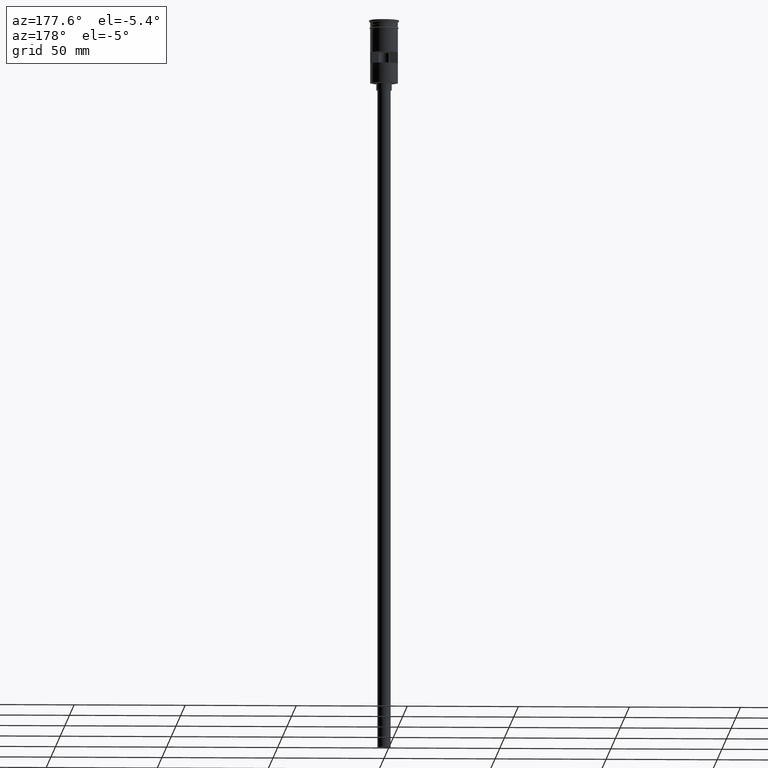
[diagram: clean part render]
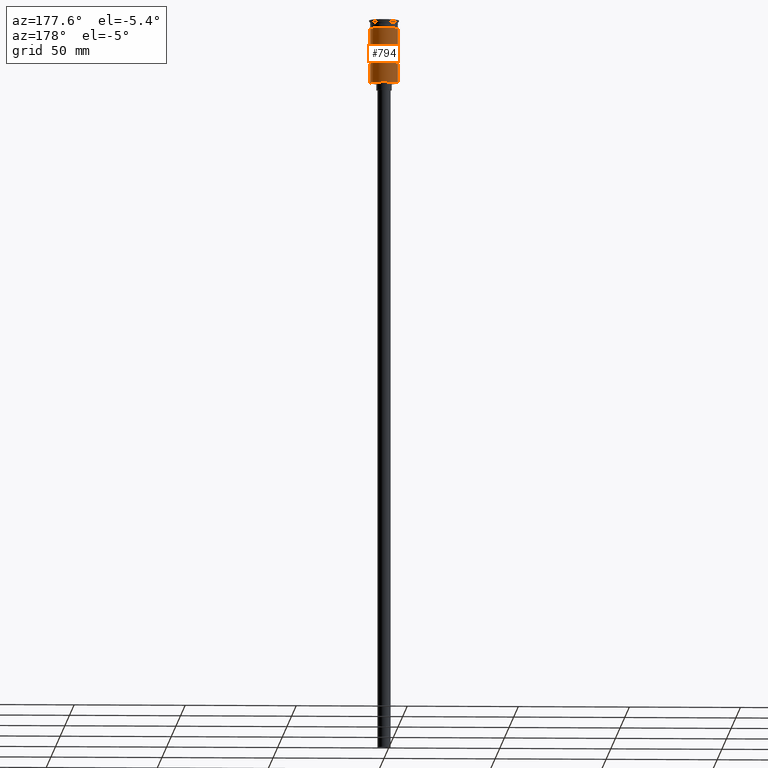
[diagram: same view with one face highlighted and labeled with its STEP entity id]
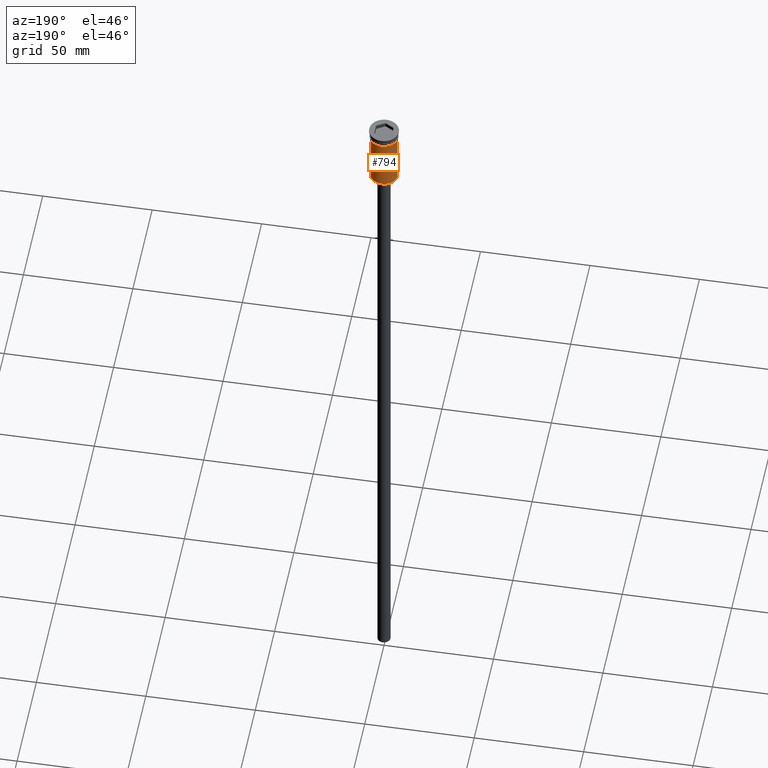
[diagram: same view with one face highlighted and labeled with its STEP entity id]
A machine part, auxiliary view. The second image highlights one B-rep face of the part: STEP entity #794.
A second angle (auxiliary view) of the same face is appended — the face is thin or edge-on in the first view.
In plain terms, the highlighted cylindrical surface (edge-blend (fillet) strip) has radius 6.25 mm, axis along (-0, -0, 1).
Its self-contained STEP definition (entity closure, byte-faithful):
#2 = CARTESIAN_POINT ( 'NONE',  ( 6.249999999999997335, 7.654042494670953662E-16, -23.80000000000003624 ) ) ;
#23 = ORIENTED_EDGE ( 'NONE', *, *, #407, .F. ) ;
#24 = EDGE_CURVE ( 'NONE', #122, #1211, #163, .T. ) ;
#122 = VERTEX_POINT ( 'NONE', #788 ) ;
#154 = DIRECTION ( 'NONE',  ( -0.000000000000000000, -0.000000000000000000, 1.000000000000000000 ) ) ;
#163 = CIRCLE ( 'NONE', #1358, 6.249999999999997335 ) ;
#183 = EDGE_CURVE ( 'NONE', #798, #122, #331, .T. ) ;
#199 = CARTESIAN_POINT ( 'NONE',  ( 0.000000000000000000, 0.000000000000000000, -14.49999999999999822 ) ) ;
#202 = DIRECTION ( 'NONE',  ( -0.000000000000000000, -0.000000000000000000, 1.000000000000000000 ) ) ;
#205 = DIRECTION ( 'NONE',  ( -0.000000000000000000, -0.000000000000000000, 1.000000000000000000 ) ) ;
#214 = EDGE_CURVE ( 'NONE', #1603, #798, #1306, .T. ) ;
#218 = VECTOR ( 'NONE', #1350, 1000.000000000000000 ) ;
#223 = AXIS2_PLACEMENT_3D ( 'NONE', #611, #360, #732 ) ;
#249 = LINE ( 'NONE', #844, #218 ) ;
#252 = LINE ( 'NONE', #1303, #972 ) ;
#259 = ORIENTED_EDGE ( 'NONE', *, *, #1120, .T. ) ;
#265 = VERTEX_POINT ( 'NONE', #1353 ) ;
#274 = FACE_OUTER_BOUND ( 'NONE', #1319, .T. ) ;
#281 = FACE_BOUND ( 'NONE', #1518, .T. ) ;
#311 = DIRECTION ( 'NONE',  ( -0.000000000000000000, -3.070307037127093647E-16, -1.000000000000000000 ) ) ;
#331 = LINE ( 'NONE', #1583, #569 ) ;
#350 = ORIENTED_EDGE ( 'NONE', *, *, #214, .F. ) ;
#360 = DIRECTION ( 'NONE',  ( 0.000000000000000000, 0.000000000000000000, 1.000000000000000000 ) ) ;
#364 = LINE ( 'NONE', #864, #520 ) ;
#407 = EDGE_CURVE ( 'NONE', #805, #612, #364, .T. ) ;
#416 = EDGE_CURVE ( 'NONE', #625, #265, #252, .T. ) ;
#418 = CARTESIAN_POINT ( 'NONE',  ( -6.249999999999995559, 0.000000000000000000, -28.29999999999999716 ) ) ;
#420 = ORIENTED_EDGE ( 'NONE', *, *, #594, .F. ) ;
#430 = CARTESIAN_POINT ( 'NONE',  ( -6.221133337262590324, 0.5999999999999999778, -14.49999999999999822 ) ) ;
#448 = LINE ( 'NONE', #592, #1489 ) ;
#455 = VECTOR ( 'NONE', #154, 1000.000000000000000 ) ;
#473 = CARTESIAN_POINT ( 'NONE',  ( 6.249999999999995559, 7.654042494670950704E-16, -28.29999999999999716 ) ) ;
#518 = DIRECTION ( 'NONE',  ( -0.000000000000000000, -0.000000000000000000, 1.000000000000000000 ) ) ;
#520 = VECTOR ( 'NONE', #1364, 1000.000000000000000 ) ;
#540 = VERTEX_POINT ( 'NONE', #418 ) ;
#569 = VECTOR ( 'NONE', #1195, 1000.000000000000000 ) ;
#576 = ORIENTED_EDGE ( 'NONE', *, *, #183, .F. ) ;
#592 = CARTESIAN_POINT ( 'NONE',  ( -6.249999999999995559, 0.000000000000000000, -28.50000000000000000 ) ) ;
#594 = EDGE_CURVE ( 'NONE', #1211, #1603, #249, .T. ) ;
#611 = CARTESIAN_POINT ( 'NONE',  ( 0.000000000000000000, 0.000000000000000000, -28.29999999999999716 ) ) ;
#612 = VERTEX_POINT ( 'NONE', #962 ) ;
#613 = CARTESIAN_POINT ( 'NONE',  ( 6.221133337262590324, 0.5999999999999999778, -14.49999999999999822 ) ) ;
#625 = VERTEX_POINT ( 'NONE', #1451 ) ;
#653 = CARTESIAN_POINT ( 'NONE',  ( 0.000000000000000000, 0.000000000000000000, -19.50000000000000355 ) ) ;
#714 = DIRECTION ( 'NONE',  ( 1.000000000000000000, 0.000000000000000000, 0.000000000000000000 ) ) ;
#730 = CIRCLE ( 'NONE', #944, 6.250000000000000000 ) ;
#732 = DIRECTION ( 'NONE',  ( -1.000000000000000000, 0.000000000000000000, 0.000000000000000000 ) ) ;
#788 = CARTESIAN_POINT ( 'NONE',  ( 6.221133337262590324, 0.5999999999999999778, -19.50000000000000355 ) ) ;
#794 = ADVANCED_FACE ( 'NONE', ( #281, #274 ), #1241, .T. ) ;
#798 = VERTEX_POINT ( 'NONE', #613 ) ;
#805 = VERTEX_POINT ( 'NONE', #2 ) ;
#844 = CARTESIAN_POINT ( 'NONE',  ( -6.221133337262590324, 0.5999999999999999778, 0.000000000000000000 ) ) ;
#859 = ORIENTED_EDGE ( 'NONE', *, *, #24, .F. ) ;
#864 = CARTESIAN_POINT ( 'NONE',  ( 6.249999999999997335, 0.000000000000000000, 0.000000000000000000 ) ) ;
#889 = CARTESIAN_POINT ( 'NONE',  ( 0.000000000000000000, 0.000000000000000000, 0.000000000000000000 ) ) ;
#900 = DIRECTION ( 'NONE',  ( -1.000000000000000000, 0.000000000000000000, 0.000000000000000000 ) ) ;
#915 = CARTESIAN_POINT ( 'NONE',  ( -6.221133337262590324, 0.5999999999999999778, -19.50000000000000355 ) ) ;
#944 = AXIS2_PLACEMENT_3D ( 'NONE', #1340, #1105, #714 ) ;
#962 = CARTESIAN_POINT ( 'NONE',  ( 6.250000000000000000, 0.000000000000000000, -3.799999999999998490 ) ) ;
#972 = VECTOR ( 'NONE', #205, 1000.000000000000000 ) ;
#981 = LINE ( 'NONE', #1470, #455 ) ;
#997 = EDGE_CURVE ( 'NONE', #612, #265, #730, .T. ) ;
#1004 = ORIENTED_EDGE ( 'NONE', *, *, #416, .T. ) ;
#1023 = DIRECTION ( 'NONE',  ( 1.000000000000000000, 0.000000000000000000, 0.000000000000000000 ) ) ;
#1032 = EDGE_CURVE ( 'NONE', #540, #625, #448, .T. ) ;
#1105 = DIRECTION ( 'NONE',  ( -0.000000000000000000, -0.000000000000000000, 1.000000000000000000 ) ) ;
#1120 = EDGE_CURVE ( 'NONE', #1408, #540, #1205, .T. ) ;
#1182 = ORIENTED_EDGE ( 'NONE', *, *, #1032, .T. ) ;
#1195 = DIRECTION ( 'NONE',  ( 0.000000000000000000, 0.000000000000000000, -1.000000000000000000 ) ) ;
#1198 = AXIS2_PLACEMENT_3D ( 'NONE', #199, #311, #1338 ) ;
#1205 = CIRCLE ( 'NONE', #223, 6.249999999999997335 ) ;
#1211 = VERTEX_POINT ( 'NONE', #915 ) ;
#1241 = CYLINDRICAL_SURFACE ( 'NONE', #1591, 6.249999999999997335 ) ;
#1303 = CARTESIAN_POINT ( 'NONE',  ( -6.249999999999997335, 7.654042494670954648E-16, 0.000000000000000000 ) ) ;
#1306 = CIRCLE ( 'NONE', #1198, 6.249999999999997335 ) ;
#1315 = ORIENTED_EDGE ( 'NONE', *, *, #1411, .F. ) ;
#1319 = EDGE_LOOP ( 'NONE', ( #1182, #1004, #1499, #23, #1315, #259 ) ) ;
#1338 = DIRECTION ( 'NONE',  ( 0.000000000000000000, -1.000000000000000000, 2.775557561562892337E-16 ) ) ;
#1340 = CARTESIAN_POINT ( 'NONE',  ( 0.000000000000000000, 0.000000000000000000, -3.799999999999998490 ) ) ;
#1350 = DIRECTION ( 'NONE',  ( -0.000000000000000000, -0.000000000000000000, 1.000000000000000000 ) ) ;
#1353 = CARTESIAN_POINT ( 'NONE',  ( -6.250000000000000000, 7.654042494670958593E-16, -3.799999999999998490 ) ) ;
#1358 = AXIS2_PLACEMENT_3D ( 'NONE', #653, #1533, #900 ) ;
#1364 = DIRECTION ( 'NONE',  ( -0.000000000000000000, -0.000000000000000000, 1.000000000000000000 ) ) ;
#1408 = VERTEX_POINT ( 'NONE', #473 ) ;
#1411 = EDGE_CURVE ( 'NONE', #1408, #805, #981, .T. ) ;
#1451 = CARTESIAN_POINT ( 'NONE',  ( -6.249999999999995559, 0.000000000000000000, -23.80000000000003624 ) ) ;
#1470 = CARTESIAN_POINT ( 'NONE',  ( 6.249999999999995559, 7.654042494670950704E-16, -28.50000000000000000 ) ) ;
#1489 = VECTOR ( 'NONE', #202, 1000.000000000000000 ) ;
#1499 = ORIENTED_EDGE ( 'NONE', *, *, #997, .F. ) ;
#1518 = EDGE_LOOP ( 'NONE', ( #576, #350, #420, #859 ) ) ;
#1533 = DIRECTION ( 'NONE',  ( 0.000000000000000000, 0.000000000000000000, 1.000000000000000000 ) ) ;
#1583 = CARTESIAN_POINT ( 'NONE',  ( 6.221133337262590324, 0.5999999999999999778, 0.000000000000000000 ) ) ;
#1591 = AXIS2_PLACEMENT_3D ( 'NONE', #889, #518, #1023 ) ;
#1603 = VERTEX_POINT ( 'NONE', #430 ) ;